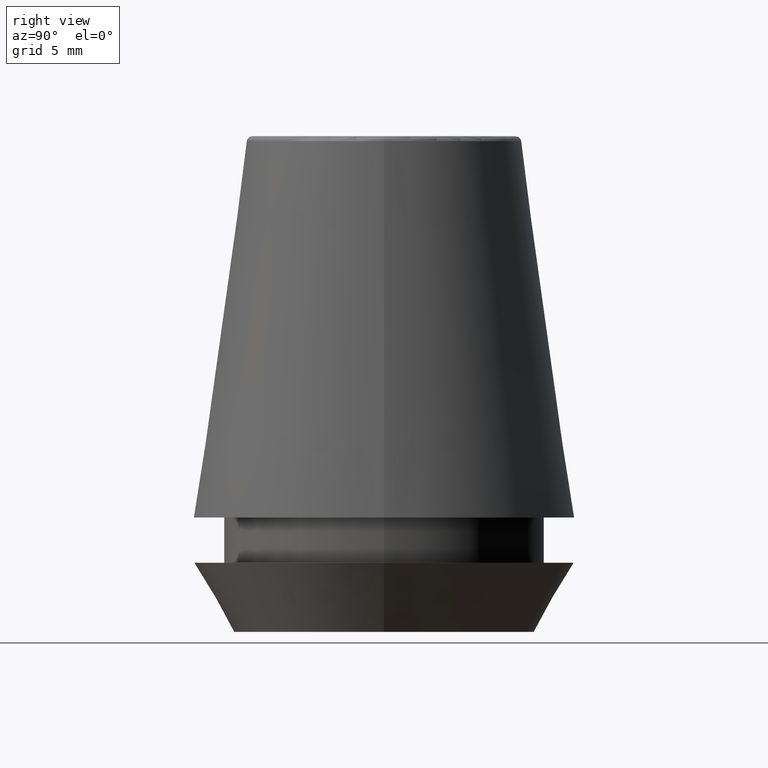
[diagram: clean part render]
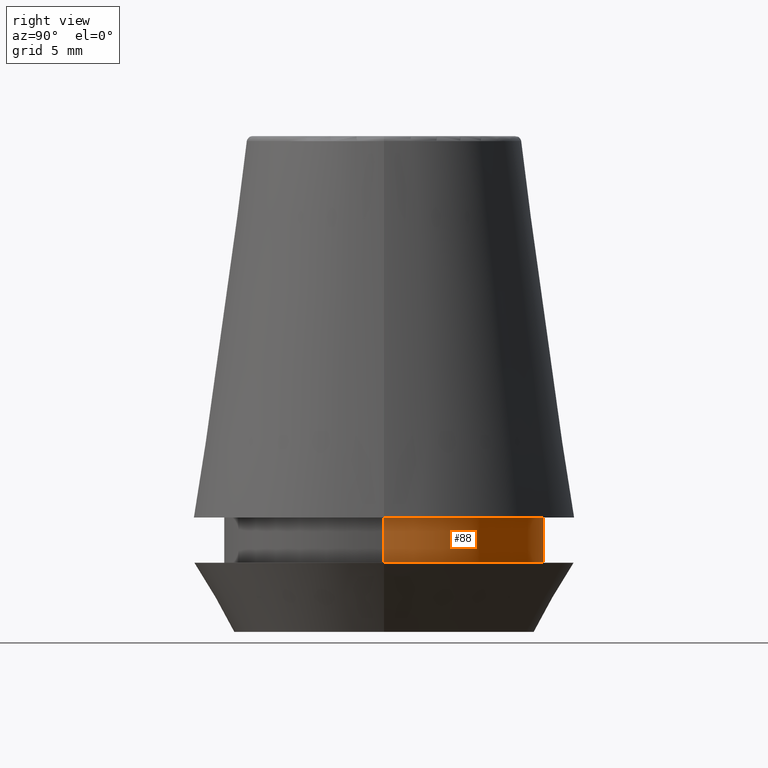
[diagram: same view with one face highlighted and labeled with its STEP entity id]
A machine part, right view. The second image highlights one B-rep face of the part: STEP entity #88.
In plain terms, the highlighted cylindrical surface (partial cylindrical patch) has radius 11 mm, axis along (-0, -0, 1).
Its self-contained STEP definition (entity closure, byte-faithful):
#3 = EDGE_CURVE ( 'NONE', #266, #68, #199, .T. ) ;
#18 = CARTESIAN_POINT ( 'NONE',  ( 0.0000000000000000000, 0.0000000000000000000, 101.8074564848000400 ) ) ;
#25 = FACE_OUTER_BOUND ( 'NONE', #142, .T. ) ;
#32 = AXIS2_PLACEMENT_3D ( 'NONE', #297, #145, #331 ) ;
#43 = EDGE_CURVE ( 'NONE', #243, #68, #299, .T. ) ;
#68 = VERTEX_POINT ( 'NONE', #282 ) ;
#88 = ADVANCED_FACE ( 'NONE', ( #25 ), #257, .T. ) ;
#99 = DIRECTION ( 'NONE',  ( -0.0000000000000000000, -0.0000000000000000000, 1.000000000000000000 ) ) ;
#101 = AXIS2_PLACEMENT_3D ( 'NONE', #241, #280, #190 ) ;
#139 = VECTOR ( 'NONE', #99, 1000.000000000000000 ) ;
#140 = CIRCLE ( 'NONE', #32, 11.00000000000000000 ) ;
#142 = EDGE_LOOP ( 'NONE', ( #275, #232, #189, #260 ) ) ;
#145 = DIRECTION ( 'NONE',  ( -0.0000000000000000000, -0.0000000000000000000, 1.000000000000000000 ) ) ;
#159 = EDGE_CURVE ( 'NONE', #169, #266, #328, .T. ) ;
#169 = VERTEX_POINT ( 'NONE', #184 ) ;
#170 = DIRECTION ( 'NONE',  ( 1.000000000000000000, 0.0000000000000000000, 0.0000000000000000000 ) ) ;
#184 = CARTESIAN_POINT ( 'NONE',  ( 11.00000000000000000, 0.0000000000000000000, 4.742050807568884500 ) ) ;
#189 = ORIENTED_EDGE ( 'NONE', *, *, #3, .F. ) ;
#190 = DIRECTION ( 'NONE',  ( 1.000000000000000000, 0.0000000000000000000, 0.0000000000000000000 ) ) ;
#199 = CIRCLE ( 'NONE', #101, 11.00000000000000000 ) ;
#232 = ORIENTED_EDGE ( 'NONE', *, *, #43, .T. ) ;
#241 = CARTESIAN_POINT ( 'NONE',  ( 0.0000000000000000000, 0.0000000000000000000, 7.842050807568890400 ) ) ;
#243 = VERTEX_POINT ( 'NONE', #343 ) ;
#257 = CYLINDRICAL_SURFACE ( 'NONE', #309, 11.00000000000000000 ) ;
#260 = ORIENTED_EDGE ( 'NONE', *, *, #159, .F. ) ;
#266 = VERTEX_POINT ( 'NONE', #308 ) ;
#275 = ORIENTED_EDGE ( 'NONE', *, *, #357, .T. ) ;
#276 = DIRECTION ( 'NONE',  ( -0.0000000000000000000, -0.0000000000000000000, 1.000000000000000000 ) ) ;
#280 = DIRECTION ( 'NONE',  ( -0.0000000000000000000, -0.0000000000000000000, 1.000000000000000000 ) ) ;
#282 = CARTESIAN_POINT ( 'NONE',  ( -11.00000000000000000, 1.347111479062088400E-015, 7.842050807568890400 ) ) ;
#292 = CARTESIAN_POINT ( 'NONE',  ( 11.00000000000000000, 0.0000000000000000000, 101.8074564848000400 ) ) ;
#295 = VECTOR ( 'NONE', #380, 1000.000000000000000 ) ;
#297 = CARTESIAN_POINT ( 'NONE',  ( 0.0000000000000000000, 0.0000000000000000000, 4.742050807568884500 ) ) ;
#299 = LINE ( 'NONE', #316, #139 ) ;
#308 = CARTESIAN_POINT ( 'NONE',  ( 11.00000000000000000, 0.0000000000000000000, 7.842050807568890400 ) ) ;
#309 = AXIS2_PLACEMENT_3D ( 'NONE', #18, #276, #170 ) ;
#316 = CARTESIAN_POINT ( 'NONE',  ( -11.00000000000000000, 1.347111479062088400E-015, 101.8074564848000400 ) ) ;
#328 = LINE ( 'NONE', #292, #295 ) ;
#331 = DIRECTION ( 'NONE',  ( 1.000000000000000000, 0.0000000000000000000, 0.0000000000000000000 ) ) ;
#343 = CARTESIAN_POINT ( 'NONE',  ( -11.00000000000000000, 1.347111479062088400E-015, 4.742050807568884500 ) ) ;
#357 = EDGE_CURVE ( 'NONE', #169, #243, #140, .T. ) ;
#380 = DIRECTION ( 'NONE',  ( -0.0000000000000000000, -0.0000000000000000000, 1.000000000000000000 ) ) ;